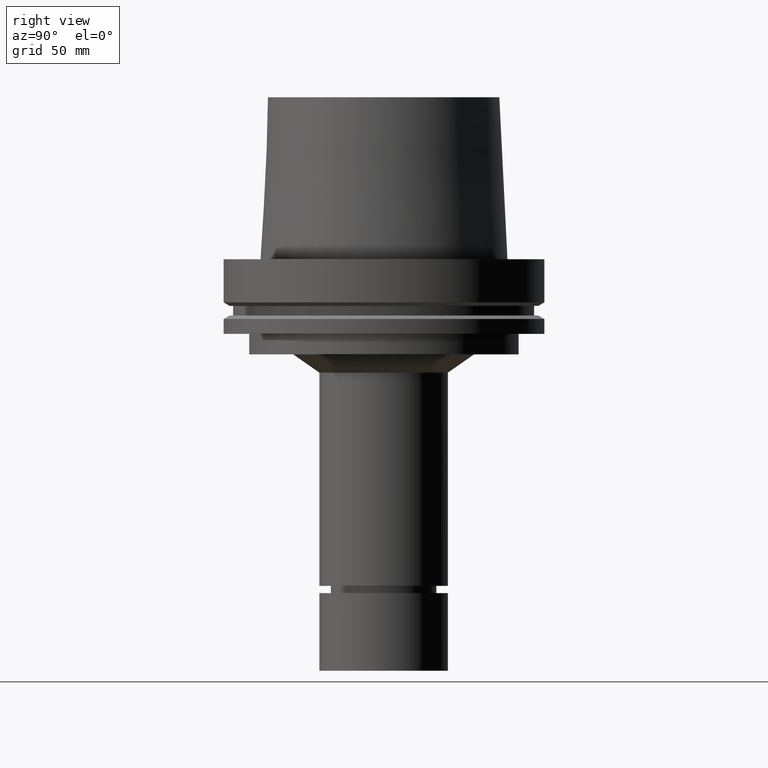
[diagram: clean part render]
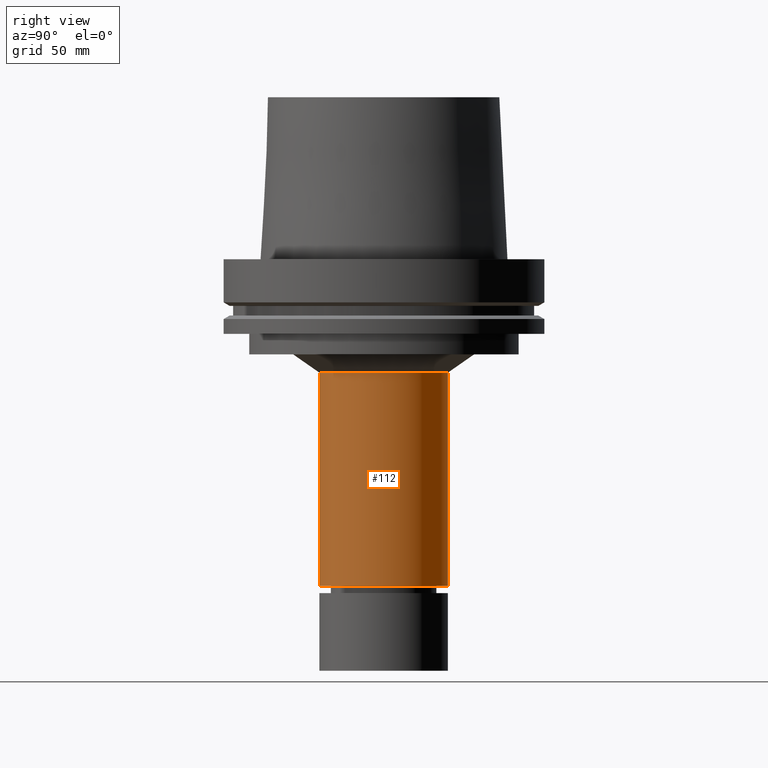
[diagram: same view with one face highlighted and labeled with its STEP entity id]
A machine part, right view. The second image highlights one B-rep face of the part: STEP entity #112.
In plain terms, the highlighted cylindrical surface (bore or boss wall) has radius 25 mm, axis along (0, -0, -1).
Its self-contained STEP definition (entity closure, byte-faithful):
#112=ADVANCED_FACE('Unnamed[1]',(#268,#269),#270,.T.);
#168=EDGE_CURVE('Unnamed[1]',#355,#355,#356,.T.);
#170=EDGE_CURVE('Unnamed[1]',#358,#358,#359,.T.);
#268=FACE_BOUND('',#479,.T.);
#269=FACE_BOUND('',#480,.T.);
#270=CYLINDRICAL_SURFACE('',#481,24.9999999999999);
#355=VERTEX_POINT('',#587);
#356=CIRCLE('',#588,25.0000000000002);
#358=VERTEX_POINT('',#591);
#359=CIRCLE('',#592,24.9999999999996);
#479=EDGE_LOOP('',(#704));
#480=EDGE_LOOP('',(#705));
#481=AXIS2_PLACEMENT_3D('',#706,#707,#708);
#587=CARTESIAN_POINT('',(7.77651682292899E-015,25.0000000000001,-127.000157569404));
#588=AXIS2_PLACEMENT_3D('',#801,#802,#803);
#591=CARTESIAN_POINT('',(2.6981810574591E-015,24.9999999999995,-44.0646406676224));
#592=AXIS2_PLACEMENT_3D('',#804,#805,#806);
#704=ORIENTED_EDGE('',*,*,#168,.F.);
#705=ORIENTED_EDGE('',*,*,#170,.T.);
#706=CARTESIAN_POINT('',(5.23734894019404E-015,-5.51982222856357E-014,-85.532399118513));
#707=DIRECTION('',(6.12323399573677E-017,-7.02088891513837E-016,-1.0));
#708=DIRECTION('',(3.81633929546977E-032,1.0,-7.02088891513837E-016));
#801=CARTESIAN_POINT('',(7.77651682292899E-015,-8.43122748499851E-014,-127.000157569404));
#802=DIRECTION('',(6.12323399573677E-017,-7.02088891513837E-016,-1.0));
#803=DIRECTION('',(3.81633929546977E-032,1.0,-7.02088891513837E-016));
#804=CARTESIAN_POINT('',(2.6981810574591E-015,-2.60841697212864E-014,-44.0646406676224));
#805=DIRECTION('',(6.12323399573677E-017,-7.02088891513837E-016,-1.0));
#806=DIRECTION('',(3.81633929546977E-032,1.0,-7.02088891513837E-016));